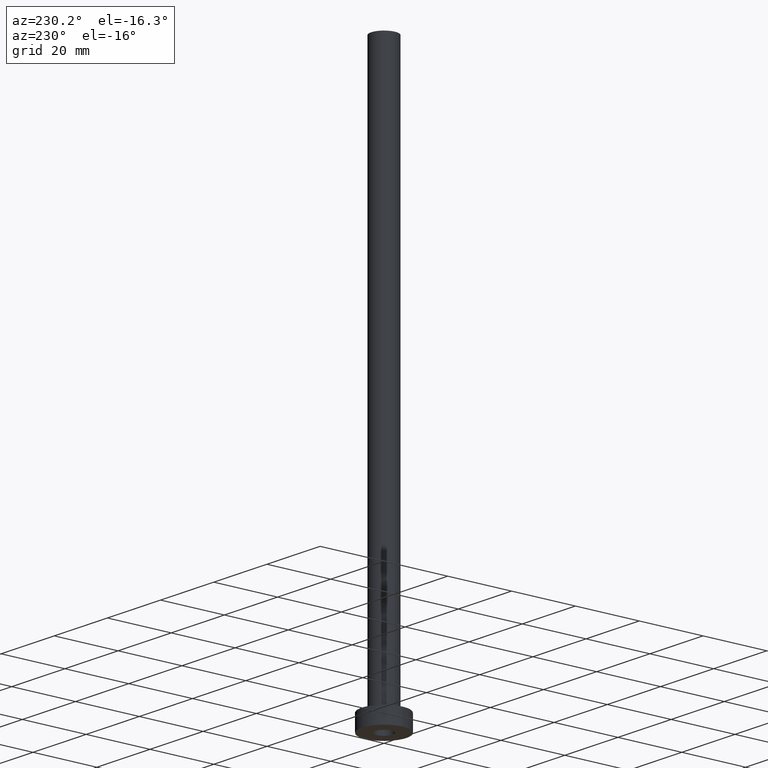
[diagram: clean part render]
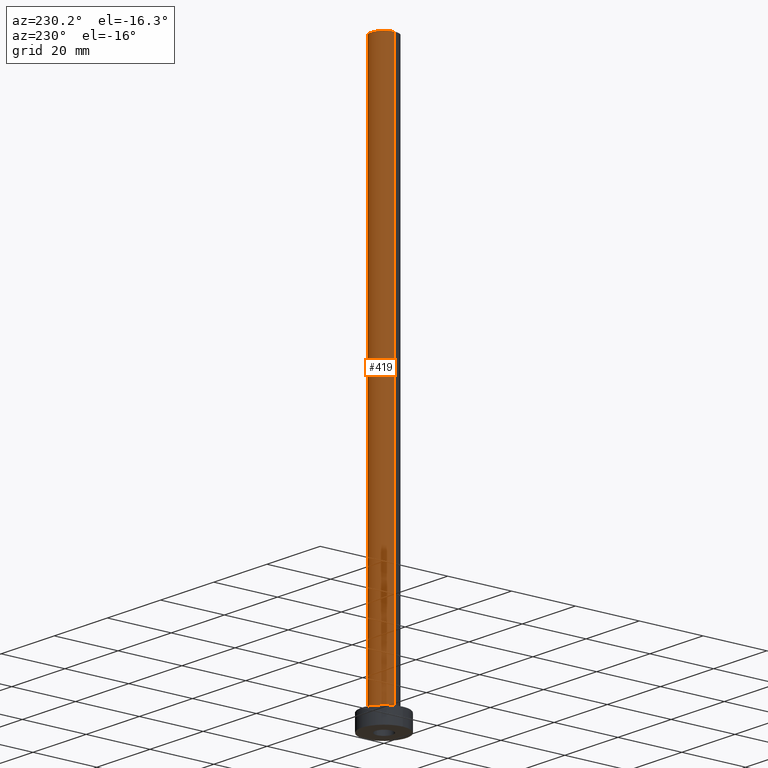
[diagram: same view with one face highlighted and labeled with its STEP entity id]
A machine part, auxiliary view. The second image highlights one B-rep face of the part: STEP entity #419.
In plain terms, the highlighted cylindrical surface (edge-blend (fillet) strip) has radius 4 mm, axis along (-0, -0, -1).
Its self-contained STEP definition (entity closure, byte-faithful):
#39 = CARTESIAN_POINT ( 'NONE',  ( -4.000000000000000000, 0.000000000000000000, 175.0000000000000284 ) ) ;
#53 = DIRECTION ( 'NONE',  ( 0.000000000000000000, 0.000000000000000000, 1.000000000000000000 ) ) ;
#61 = CARTESIAN_POINT ( 'NONE',  ( -4.000000000000000000, 0.000000000000000000, 5.500000000000005329 ) ) ;
#64 = DIRECTION ( 'NONE',  ( -1.000000000000000000, 0.000000000000000000, 0.000000000000000000 ) ) ;
#67 = CARTESIAN_POINT ( 'NONE',  ( 4.000000000000000000, 4.898587196589412829E-16, 175.0000000000000284 ) ) ;
#108 = LINE ( 'NONE', #67, #417 ) ;
#114 = VERTEX_POINT ( 'NONE', #122 ) ;
#122 = CARTESIAN_POINT ( 'NONE',  ( 4.000000000000000000, 4.898587196589412829E-16, 5.500000000000005329 ) ) ;
#129 = CARTESIAN_POINT ( 'NONE',  ( 0.000000000000000000, 0.000000000000000000, 5.500000000000005329 ) ) ;
#141 = EDGE_LOOP ( 'NONE', ( #218, #446, #297, #293 ) ) ;
#147 = CARTESIAN_POINT ( 'NONE',  ( -4.000000000000000000, 0.000000000000000000, 175.0000000000000284 ) ) ;
#153 = CARTESIAN_POINT ( 'NONE',  ( 4.000000000000000000, 4.898587196589412829E-16, 175.0000000000000284 ) ) ;
#159 = AXIS2_PLACEMENT_3D ( 'NONE', #326, #221, #64 ) ;
#170 = DIRECTION ( 'NONE',  ( 1.000000000000000000, 0.000000000000000000, 0.000000000000000000 ) ) ;
#180 = CARTESIAN_POINT ( 'NONE',  ( 0.000000000000000000, 0.000000000000000000, 175.0000000000000284 ) ) ;
#218 = ORIENTED_EDGE ( 'NONE', *, *, #389, .F. ) ;
#221 = DIRECTION ( 'NONE',  ( -0.000000000000000000, -0.000000000000000000, -1.000000000000000000 ) ) ;
#226 = VECTOR ( 'NONE', #452, 1000.000000000000000 ) ;
#250 = DIRECTION ( 'NONE',  ( 1.000000000000000000, 0.000000000000000000, 0.000000000000000000 ) ) ;
#260 = VERTEX_POINT ( 'NONE', #61 ) ;
#262 = EDGE_CURVE ( 'NONE', #114, #260, #458, .T. ) ;
#283 = FACE_OUTER_BOUND ( 'NONE', #141, .T. ) ;
#285 = CYLINDRICAL_SURFACE ( 'NONE', #159, 4.000000000000000000 ) ;
#293 = ORIENTED_EDGE ( 'NONE', *, *, #395, .F. ) ;
#297 = ORIENTED_EDGE ( 'NONE', *, *, #262, .T. ) ;
#326 = CARTESIAN_POINT ( 'NONE',  ( 0.000000000000000000, 0.000000000000000000, 175.0000000000000284 ) ) ;
#352 = LINE ( 'NONE', #39, #226 ) ;
#358 = VERTEX_POINT ( 'NONE', #153 ) ;
#364 = DIRECTION ( 'NONE',  ( 0.000000000000000000, 0.000000000000000000, 1.000000000000000000 ) ) ;
#377 = CIRCLE ( 'NONE', #441, 4.000000000000000000 ) ;
#389 = EDGE_CURVE ( 'NONE', #358, #450, #377, .T. ) ;
#395 = EDGE_CURVE ( 'NONE', #450, #260, #352, .T. ) ;
#417 = VECTOR ( 'NONE', #461, 1000.000000000000000 ) ;
#419 = ADVANCED_FACE ( 'NONE', ( #283 ), #285, .T. ) ;
#438 = AXIS2_PLACEMENT_3D ( 'NONE', #129, #53, #170 ) ;
#441 = AXIS2_PLACEMENT_3D ( 'NONE', #180, #364, #250 ) ;
#446 = ORIENTED_EDGE ( 'NONE', *, *, #460, .T. ) ;
#450 = VERTEX_POINT ( 'NONE', #147 ) ;
#452 = DIRECTION ( 'NONE',  ( -0.000000000000000000, -0.000000000000000000, -1.000000000000000000 ) ) ;
#458 = CIRCLE ( 'NONE', #438, 4.000000000000000000 ) ;
#460 = EDGE_CURVE ( 'NONE', #358, #114, #108, .T. ) ;
#461 = DIRECTION ( 'NONE',  ( -0.000000000000000000, -0.000000000000000000, -1.000000000000000000 ) ) ;